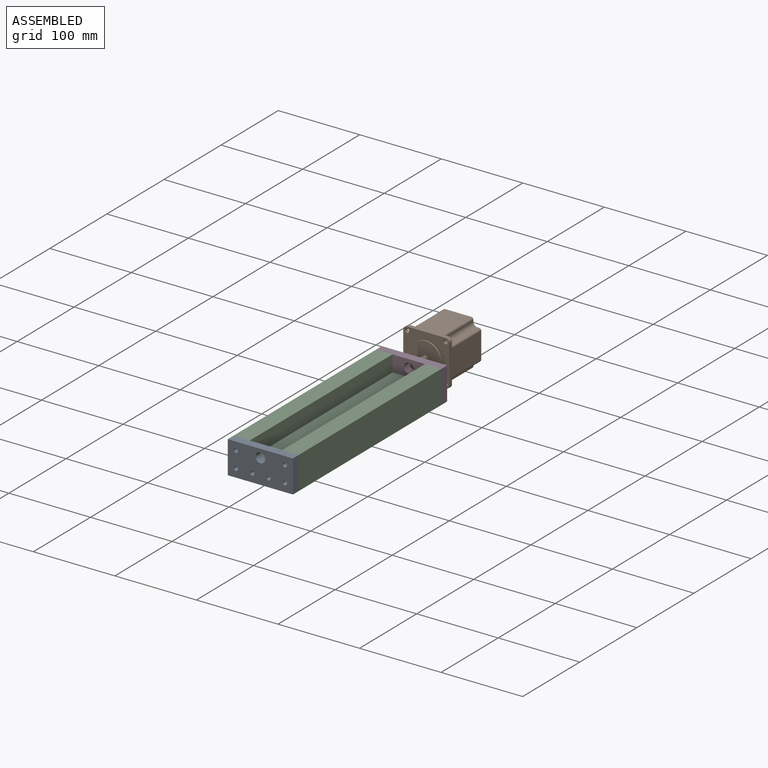
[diagram: assembled view]
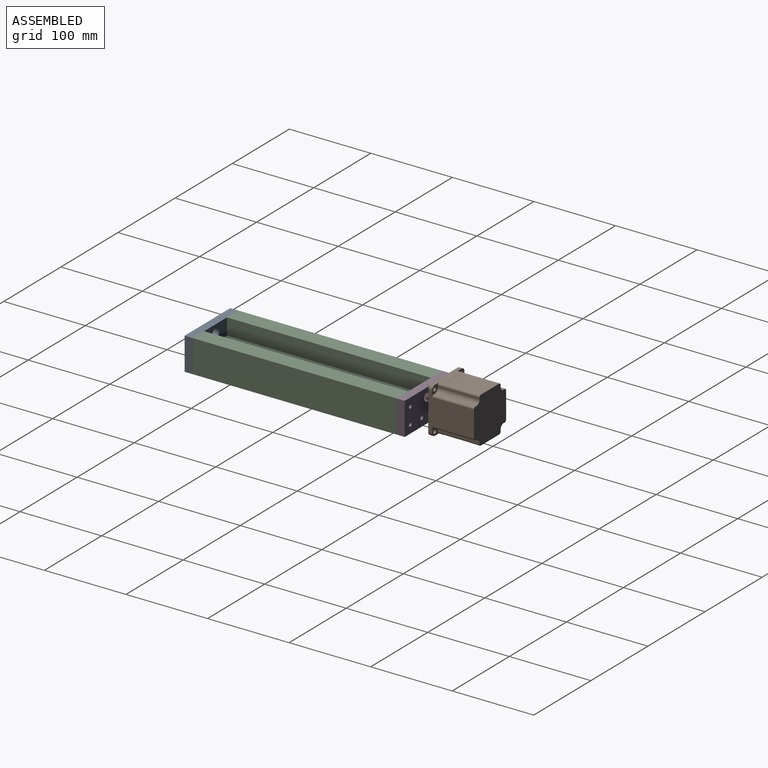
[diagram: assembled view, second angle]
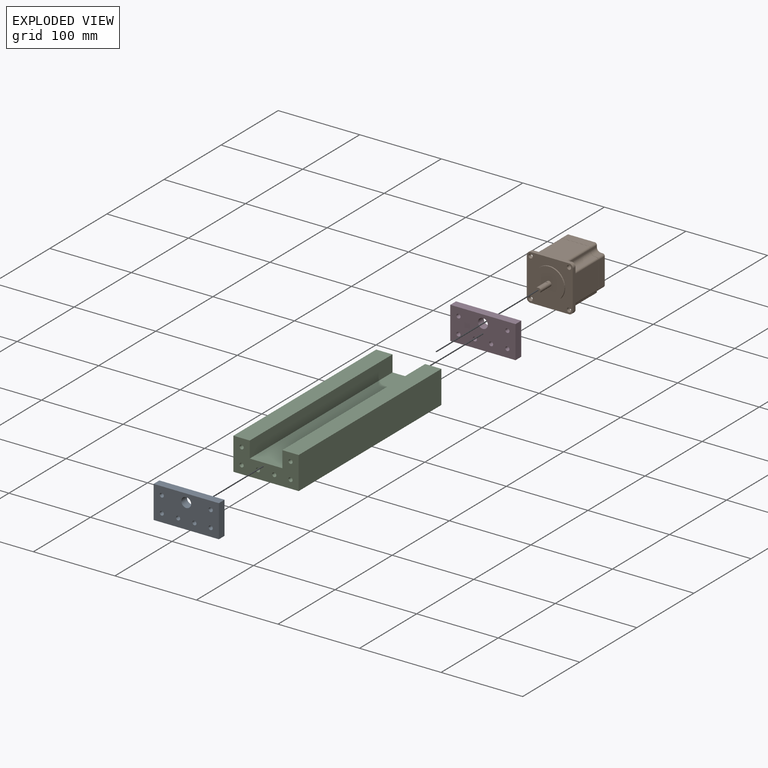
[diagram: exploded view]
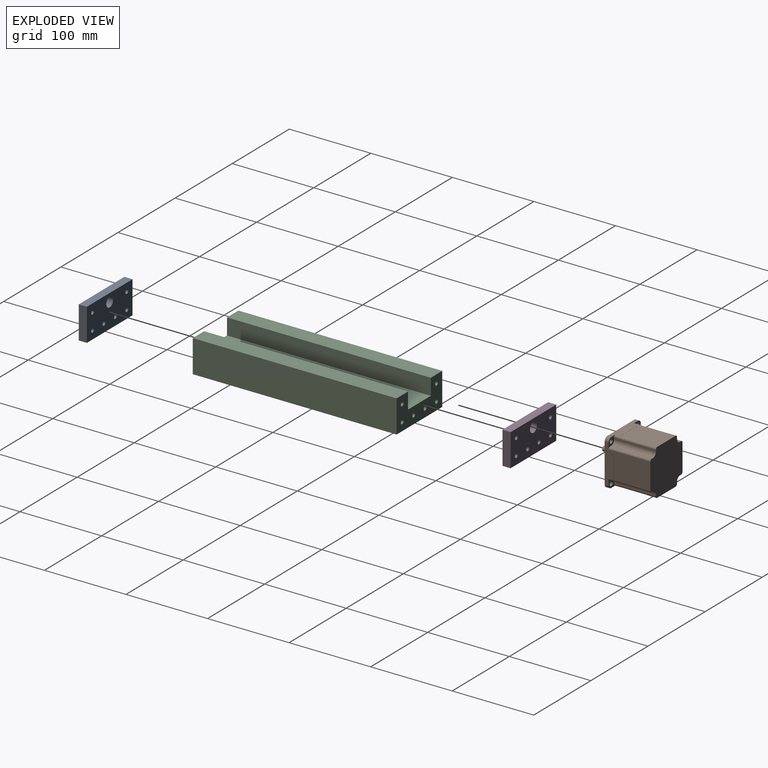
[diagram: exploded view, second angle]
ASSEMBLY  parts=4 mates=3
PART A: 13 faces, bbox 80x10x40 mm
  f0: plane 40x10mm, normal (-1,0,0), area 400mm2, adj f1,f8,f10,f11
  f1: plane 80x10mm, normal (0,0,-1), area 800mm2, adj f0,f2,f10,f11
  f2: plane 40x10mm, normal (1,0,0), area 400mm2, adj f1,f8,f10,f11
  f3: cylinder r=2.5mm len=10mm, axis (0,1,0), area 157.1mm2, adj f10,f11
  f4: cylinder r=2.5mm len=10mm, axis (0,1,0), area 157.1mm2, adj f10,f11
  f5: cylinder r=2.5mm len=10mm, axis (0,1,0), area 157.1mm2, adj f10,f11
  f6: cylinder r=2.5mm len=10mm, axis (0,1,0), area 157.1mm2, adj f10,f11
  f7: cylinder r=2.5mm len=10mm, axis (0,1,0), area 157.1mm2, adj f10,f11
  f8: plane 80x10mm, normal (0,0,1), area 800mm2, adj f0,f2,f10,f11
  f9: cylinder r=2.5mm len=10mm, axis (0,1,0), area 157.1mm2, adj f10,f11
  f10: plane 80x40mm, normal (0,-1,0), area 2969.1mm2, adj f0,f1,f2,f3,f4,f5,f6,f7
  f11: plane 80x40mm, normal (0,1,0), area 2969.1mm2, adj f0,f1,f2,f3,f4,f5,f6,f7
  f12: cylinder r=6mm len=12mm, axis (0,-1,0), area 377mm2, adj f10,f11
PART B: 94 faces, bbox 56.4x56.4x76.6 mm
  f0: plane 12.13x12.13mm, normal (0,0,-1), area 65.1mm2, adj f7,f8,f14,f32,f33,f34,f35,f36
  f1: plane 12.13x12.13mm, normal (0,0,-1), area 65.1mm2, adj f12,f13,f14,f27,f28,f29,f30,f31
  f2: plane 12.13x12.13mm, normal (0,0,-1), area 65.1mm2, adj f10,f11,f12,f22,f23,f24,f25,f26
  f3: cylinder r=3.17mm len=19mm, axis (0,0,-1), area 324.8mm2, adj f4,f5,f37,f38
  f4: plane 6.35x5.85mm, normal (0,0,1), area 30.5mm2, adj f3,f38
  f5: plane 38.1x38.1mm, normal (0,0,1), area 1108.4mm2, adj f3,f6
  f6: cylinder r=19.05mm len=38.1mm, axis (0,0,-1), area 191.5mm2, adj f5,f16
  f7: cylinder r=4.6mm len=4.8mm, axis (0,0,1), area 34.7mm2, adj f0,f8,f14,f16
  f8: plane 47.2x11mm, normal (0,1,0), area 425.8mm2, adj f0,f7,f9,f15,f16,f17,f36,f44
  f9: cylinder r=4.6mm len=4.8mm, axis (0,0,1), area 34.7mm2, adj f8,f10,f15,f16
  f10: plane 47.2x11mm, normal (1,0,0), area 425.8mm2, adj f2,f9,f11,f15,f16,f21,f22,f44
  f11: cylinder r=4.6mm len=4.8mm, axis (0,0,1), area 34.7mm2, adj f2,f10,f12,f16
  f12: plane 47.2x11mm, normal (0,-1,0), area 425.8mm2, adj f1,f2,f11,f13,f16,f26,f27,f44
  f13: cylinder r=4.6mm len=4.8mm, axis (0,0,1), area 34.7mm2, adj f1,f12,f14,f16
  f14: plane 47.2x11mm, normal (-1,0,0), area 425.8mm2, adj f0,f1,f7,f13,f16,f31,f32,f44
  f15: plane 12.13x12.13mm, normal (0,0,-1), area 65.1mm2, adj f8,f9,f10,f17,f18,f19,f20,f21
  f16: plane 56.4x56.4mm, normal (0,0,1), area 1941mm2, adj f6,f7,f8,f9,f10,f11,f12,f13
  f17: cylinder r=2.5mm len=6.2mm, axis (0,0,1), area 24.3mm2, adj f8,f15,f18,f44
  f18: plane 6.2x2.13mm, normal (1,0,0), area 13.2mm2, adj f15,f17,f19,f44
  f19: cylinder r=5mm len=6.2mm, axis (0,0,1), area 48.7mm2, adj f15,f18,f20,f44
  f20: plane 6.2x2.13mm, normal (0,1,0), area 13.2mm2, adj f15,f19,f21,f44
  f21: cylinder r=2.5mm len=6.2mm, axis (0,0,1), area 24.3mm2, adj f10,f15,f20,f44
  f22: cylinder r=2.5mm len=6.2mm, axis (0,0,1), area 24.3mm2, adj f2,f10,f23,f44
  f23: plane 6.2x2.13mm, normal (0,-1,0), area 13.2mm2, adj f2,f22,f24,f44
  f24: cylinder r=5mm len=6.2mm, axis (0,0,1), area 48.7mm2, adj f2,f23,f25,f44
  f25: plane 6.2x2.13mm, normal (1,0,0), area 13.2mm2, adj f2,f24,f26,f44
  f26: cylinder r=2.5mm len=6.2mm, axis (0,0,1), area 24.3mm2, adj f2,f12,f25,f44
  f27: cylinder r=2.5mm len=6.2mm, axis (0,0,1), area 24.3mm2, adj f1,f12,f28,f44
  f28: plane 6.2x2.13mm, normal (-1,0,0), area 13.2mm2, adj f1,f27,f29,f44
  f29: cylinder r=5mm len=6.2mm, axis (0,0,1), area 48.7mm2, adj f1,f28,f30,f44
  f30: plane 6.2x2.13mm, normal (0,-1,0), area 13.2mm2, adj f1,f29,f31,f44
  f31: cylinder r=2.5mm len=6.2mm, axis (0,0,1), area 24.3mm2, adj f1,f14,f30,f44
  f32: cylinder r=2.5mm len=6.2mm, axis (0,0,1), area 24.3mm2, adj f0,f14,f33,f44
  f33: plane 6.2x2.13mm, normal (0,1,0), area 13.2mm2, adj f0,f32,f34,f44
  f34: cylinder r=5mm len=6.2mm, axis (0,0,1), area 48.7mm2, adj f0,f33,f35,f44
  f35: plane 6.2x2.13mm, normal (-1,0,0), area 13.2mm2, adj f0,f34,f36,f44
  f36: cylinder r=2.5mm len=6.2mm, axis (0,0,1), area 24.3mm2, adj f0,f8,f35,f44
  f37: plane 3.42x0.5mm, normal (0,0,1), area 1.2mm2, adj f3,f38
  f38: plane 15x3.42mm, normal (0,1,0), area 51.3mm2, adj f3,f4,f37
  f39: cylinder r=2.55mm len=5.1mm, axis (0,0,1), area 76.9mm2, adj f0,f16
  f40: cylinder r=2.55mm len=5.1mm, axis (0,0,1), area 76.9mm2, adj f15,f16
  f41: cylinder r=2.55mm len=5.1mm, axis (0,0,1), area 76.9mm2, adj f2,f16
  f42: cylinder r=2.55mm len=5.1mm, axis (0,0,1), area 76.9mm2, adj f1,f16
  f43: plane 56.4x56.4mm, normal (0,0,1), area 20.8mm2, adj f45,f46,f47,f48,f49,f50,f51,f52
  f44: plane 56.4x56.4mm, normal (0,0,-1), area 20.8mm2, adj f8,f10,f12,f14,f17,f18,f19,f20
  f45: cylinder r=2.4mm len=34mm, axis (0,0,1), area 128.2mm2, adj f43,f44,f46,f68
  f46: plane 34x2.13mm, normal (1,0,0), area 72.4mm2, adj f43,f44,f45,f47
  f47: cylinder r=5.1mm len=34mm, axis (0,0,1), area 272.4mm2, adj f43,f44,f46,f48
  f48: plane 34x2.13mm, normal (0,1,0), area 72.4mm2, adj f43,f44,f47,f49
  f49: cylinder r=2.4mm len=34mm, axis (0,0,1), area 128.2mm2, adj f43,f44,f48,f50
  f50: plane 34x32.14mm, normal (1,0,0), area 1092.8mm2, adj f43,f44,f49,f51
  f51: cylinder r=2.4mm len=34mm, axis (0,0,1), area 128.2mm2, adj f43,f44,f50,f52
  f52: plane 34x2.13mm, normal (0,-1,0), area 72.4mm2, adj f43,f44,f51,f53
  f53: cylinder r=5.1mm len=34mm, axis (0,0,1), area 272.4mm2, adj f43,f44,f52,f54
  f54: plane 34x2.13mm, normal (1,0,0), area 72.4mm2, adj f43,f44,f53,f55
  f55: cylinder r=2.4mm len=34mm, axis (0,0,1), area 128.2mm2, adj f43,f44,f54,f56
  f56: plane 34x32.14mm, normal (0,-1,0), area 1092.8mm2, adj f43,f44,f55,f57
  f57: cylinder r=2.4mm len=34mm, axis (0,0,1), area 128.2mm2, adj f43,f44,f56,f58
  f58: plane 34x2.13mm, normal (-1,0,0), area 72.4mm2, adj f43,f44,f57,f59
  f59: cylinder r=5.1mm len=34mm, axis (0,0,1), area 272.4mm2, adj f43,f44,f58,f60
  f60: plane 34x2.13mm, normal (0,-1,0), area 72.4mm2, adj f43,f44,f59,f61
  f61: cylinder r=2.4mm len=34mm, axis (0,0,1), area 128.2mm2, adj f43,f44,f60,f62
  f62: plane 34x32.14mm, normal (-1,0,0), area 1092.8mm2, adj f43,f44,f61,f63
  f63: cylinder r=2.4mm len=34mm, axis (0,0,1), area 128.2mm2, adj f43,f44,f62,f64
  f64: plane 34x2.13mm, normal (0,1,0), area 72.4mm2, adj f43,f44,f63,f65
  f65: cylinder r=5.1mm len=34mm, axis (0,0,1), area 272.4mm2, adj f43,f44,f64,f66
  f66: plane 34x2.13mm, normal (-1,0,0), area 72.4mm2, adj f43,f44,f65,f67
  f67: cylinder r=2.4mm len=34mm, axis (0,0,1), area 128.2mm2, adj f43,f44,f66,f68
  f68: plane 34x32.14mm, normal (0,1,0), area 1092.8mm2, adj f43,f44,f45,f67
  f69: plane 56.4x56.4mm, normal (0,0,-1), area 2820.7mm2, adj f70,f71,f72,f73,f74,f75,f76,f77
  f70: cylinder r=2.5mm len=11mm, axis (0,0,1), area 43.2mm2, adj f43,f69,f71,f92
  f71: plane 11x2.13mm, normal (0,1,0), area 23.4mm2, adj f43,f69,f70,f72
  f72: cylinder r=5mm len=11mm, axis (0,0,1), area 86.4mm2, adj f43,f69,f71,f73
  f73: plane 11x2.13mm, normal (1,0,0), area 23.4mm2, adj f43,f69,f72,f74
  f74: cylinder r=2.5mm len=11mm, axis (0,0,1), area 43.2mm2, adj f43,f69,f73,f93
  f75: cylinder r=2.5mm len=11mm, axis (0,0,1), area 43.2mm2, adj f43,f69,f76,f91
  f76: plane 11x2.13mm, normal (1,0,0), area 23.4mm2, adj f43,f69,f75,f77
  f77: cylinder r=5mm len=11mm, axis (0,0,1), area 86.4mm2, adj f43,f69,f76,f78
  f78: plane 11x2.13mm, normal (0,-1,0), area 23.4mm2, adj f43,f69,f77,f79
  f79: cylinder r=2.5mm len=11mm, axis (0,0,1), area 43.2mm2, adj f43,f69,f78,f92
  f80: cylinder r=2.5mm len=11mm, axis (0,0,1), area 43.2mm2, adj f43,f69,f81,f90
  f81: plane 11x2.13mm, normal (0,-1,0), area 23.4mm2, adj f43,f69,f80,f82
  f82: cylinder r=5mm len=11mm, axis (0,0,1), area 86.4mm2, adj f43,f69,f81,f83
  f83: plane 11x2.13mm, normal (-1,0,0), area 23.4mm2, adj f43,f69,f82,f84
  f84: cylinder r=2.5mm len=11mm, axis (0,0,1), area 43.2mm2, adj f43,f69,f83,f91
  f85: cylinder r=2.5mm len=11mm, axis (0,0,1), area 43.2mm2, adj f43,f69,f86,f93
  f86: plane 11x2.13mm, normal (-1,0,0), area 23.4mm2, adj f43,f69,f85,f87
  f87: cylinder r=5mm len=11mm, axis (0,0,1), area 86.4mm2, adj f43,f69,f86,f88
  f88: plane 11x2.13mm, normal (0,1,0), area 23.4mm2, adj f43,f69,f87,f89
  f89: cylinder r=2.5mm len=11mm, axis (0,0,1), area 43.2mm2, adj f43,f69,f88,f90
  f90: plane 32.14x11mm, normal (-1,0,0), area 353.5mm2, adj f43,f69,f80,f89
  f91: plane 32.14x11mm, normal (0,-1,0), area 353.5mm2, adj f43,f69,f75,f84
  f92: plane 32.14x11mm, normal (1,0,0), area 353.5mm2, adj f43,f69,f70,f79
  f93: plane 32.14x11mm, normal (0,1,0), area 353.5mm2, adj f43,f69,f74,f85
PART C: 16 faces, bbox 80x250x40 mm
  f0: plane 250x40mm, normal (-1,0,0), area 10000mm2, adj f1,f7,f8,f9
  f1: plane 250x80mm, normal (0,0,-1), area 20000mm2, adj f0,f2,f8,f9
  f2: plane 250x40mm, normal (1,0,0), area 10000mm2, adj f1,f3,f8,f9
  f3: plane 250x20mm, normal (0,0,1), area 5000mm2, adj f2,f4,f8,f9
  f4: plane 250x20mm, normal (-1,0,0), area 5000mm2, adj f3,f5,f8,f9
  f5: plane 250x40mm, normal (0,0,1), area 10000mm2, adj f4,f6,f8,f9
  f6: plane 250x20mm, normal (1,0,0), area 5000mm2, adj f5,f7,f8,f9
  f7: plane 250x20mm, normal (0,0,1), area 5000mm2, adj f0,f6,f8,f9
  f8: plane 80x40mm, normal (0,-1,0), area 2282.2mm2, adj f0,f1,f2,f3,f4,f5,f6,f7
  f9: plane 80x40mm, normal (0,1,0), area 2282.2mm2, adj f0,f1,f2,f3,f4,f5,f6,f7
  f10: cylinder r=2.5mm len=250mm, axis (0,-1,0), area 3927mm2, adj f8,f9
  f11: cylinder r=2.5mm len=250mm, axis (0,-1,0), area 3927mm2, adj f8,f9
  f12: cylinder r=2.5mm len=250mm, axis (0,-1,0), area 3927mm2, adj f8,f9
  f13: cylinder r=2.5mm len=250mm, axis (0,-1,0), area 3927mm2, adj f8,f9
  f14: cylinder r=2.5mm len=250mm, axis (0,-1,0), area 3927mm2, adj f8,f9
  f15: cylinder r=2.5mm len=250mm, axis (0,-1,0), area 3927mm2, adj f8,f9
PART D: same geometry as A
PLACE A t=(-37.66,-238.6,49.72)mm
PLACE B rot(axis=(1,0,0),90deg) t=(2.34,42,79.72)mm
PLACE C t=(-37.66,11.4,49.72)mm fixed
PLACE D t=(-37.66,21.4,49.72)mm
MATE fastened D.f7 <-> C.f10  axis (0,-1,0) through (-27.66,11.4,79.72)mm
MATE fastened C.f15 <-> A.f9  axis (0,-1,0) through (32.34,-238.6,79.72)mm
MATE fastened D.f12 <-> B.f3  axis (0,1,0) through (2.34,21.4,79.72)mm
